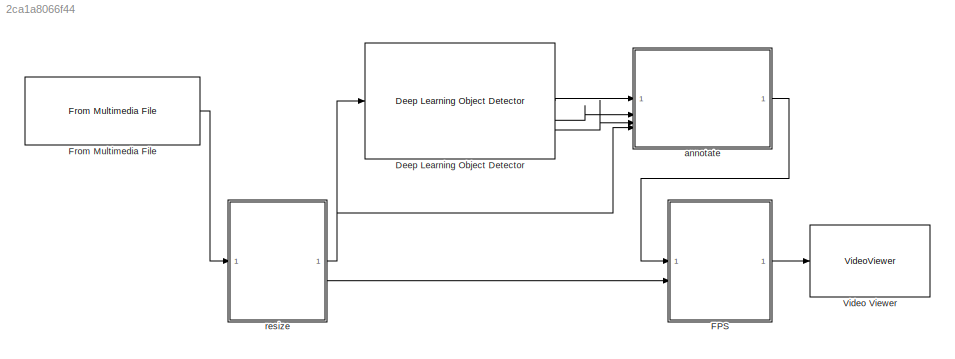
MODEL slx_2ca1a8066f44
KIND model
CONFIG AbsTol = auto
CONFIG EnableMultiTasking = off
CONFIG FixedStep = auto
CONFIG MaxStep = auto
CONFIG MinStep = auto
CONFIG RelTol = 1e-3
CONFIG SampleTimeConstraint = Unconstrained
CONFIG SolverName = VariableStepAuto
CONFIG StartTime = 0.0
CONFIG StopTime = 10.0
BLOCK [Reference] Deep Learning Object Detector  REF=visionanalysis/Deep Learning Object Detector
  SourceBlock = visionanalysis/Deep Learning Object Detector
  SourceType = Deep Learning Object Detector
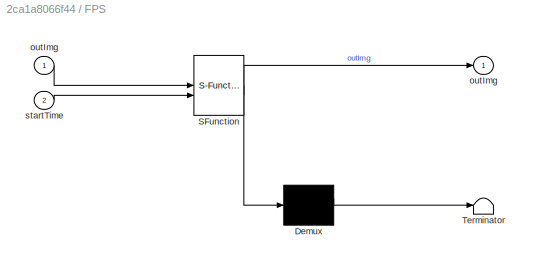
BLOCK [SubSystem] FPS
  ErrorFcn = Stateflow.Translate.translate
  LibrarySourceBlock = simulink/User-Defined\nFunctions/MATLAB Function
  PermitHierarchicalResolution = ExplicitOnly
  SFBlockType = MATLAB Function
  TreatAsAtomicUnit = on
BLOCK [Demux] FPS/ Demux 
  Outputs = 1
BLOCK [S-Function] FPS/ SFunction 
  EnableBusSupport = on
  FunctionName = sf_sfun
  PortCounts = [2 2]
  SFcnIsStateOwnerBlock = off
  SFunctionDeploymentMode = off
  Tag = Stateflow S-Function 3
BLOCK [Terminator] FPS/ Terminator 
BLOCK [Outport] FPS/outImg
BLOCK [Inport] FPS/outImg 
BLOCK [Inport] FPS/startTime
  Port = 2
BLOCK [Reference] From Multimedia File  REF=dspvision/From Multimedia File
  LibrarySourceBlock = audiosources/From Multimedia File
  SourceBlock = dspvision/From Multimedia File
  SourceType = From Multimedia File
BLOCK [VideoViewer] Video Viewer
  FigPos = [546.6 774 857.6 545.6]
  ScopeSpecificationString = vipscopes.VideoViewerScopeCfg('CurrentConfiguration', extmgr.ConfigurationSet(extmgr.Configuration('Core','General UI',true),extmgr.Configuration('Core','Source UI',true),extmgr.Configuration('Sources','WiredSimulink',true),extmgr.Configuration('Visuals','Video',true),extmgr.Configuration('Tools','Image Navigation Tools',true,'Magnification',2),extmgr.Configuration('Tools','Image Tool',true),extmg...<+98ch>
  colormapValue = gray(256)
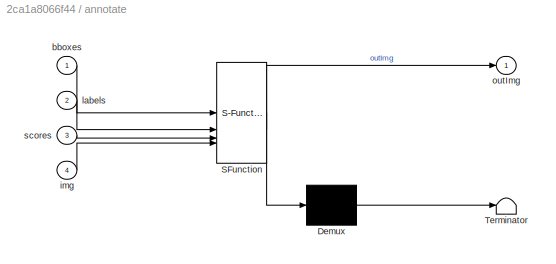
BLOCK [SubSystem] annotate
  ErrorFcn = Stateflow.Translate.translate
  LibrarySourceBlock = simulink/User-Defined\nFunctions/MATLAB Function
  PermitHierarchicalResolution = ExplicitOnly
  SFBlockType = MATLAB Function
  TreatAsAtomicUnit = on
BLOCK [Demux] annotate/ Demux 
  Outputs = 1
BLOCK [S-Function] annotate/ SFunction 
  EnableBusSupport = on
  FunctionName = sf_sfun
  PortCounts = [4 2]
  SFcnIsStateOwnerBlock = off
  SFunctionDeploymentMode = off
  Tag = Stateflow S-Function 4
BLOCK [Terminator] annotate/ Terminator 
BLOCK [Inport] annotate/bboxes
BLOCK [Inport] annotate/img
  Port = 4
BLOCK [Inport] annotate/labels
  Port = 2
BLOCK [Outport] annotate/outImg
BLOCK [Inport] annotate/scores
  Port = 3
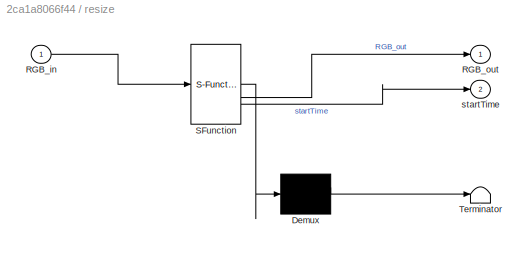
BLOCK [SubSystem] resize
  ErrorFcn = Stateflow.Translate.translate
  LibrarySourceBlock = simulink/User-Defined\nFunctions/MATLAB Function
  PermitHierarchicalResolution = ExplicitOnly
  SFBlockType = MATLAB Function
  TreatAsAtomicUnit = on
BLOCK [Demux] resize/ Demux 
  Outputs = 1
BLOCK [S-Function] resize/ SFunction 
  EnableBusSupport = on
  FunctionName = sf_sfun
  PortCounts = [1 3]
  SFcnIsStateOwnerBlock = off
  SFunctionDeploymentMode = off
  Tag = Stateflow S-Function 1
BLOCK [Terminator] resize/ Terminator 
BLOCK [Inport] resize/RGB_in
BLOCK [Outport] resize/RGB_out
BLOCK [Outport] resize/startTime
  Port = 2
LINE Deep Learning Object Detector:1 -> annotate:1
LINE Deep Learning Object Detector:2 -> annotate:2
LINE Deep Learning Object Detector:3 -> annotate:3
LINE FPS:1 -> Video Viewer:1
LINE From Multimedia File:1 -> resize:1
LINE annotate:1 -> FPS:1
NET resize:1 -> Deep Learning Object Detector:1, annotate:4
LINE resize:2 -> FPS:2
note: NET lines group one-source signal fan-out (src -> all destinations, sorted); 1:1 wires keep LINE
CHART resize states=1 transitions=1
  STATE_LABEL 'eML_blk_kernel()'
  STATE_LABEL 'SCRIPT:\nfunction [RGB_out, startTime] = resizeImg(RGB_in)\n\n    RGB_out = imresize(RGB_in,[320,320]);\n    currentTime = datetime;\n    startTime = [currentTime.Year currentTime.Month currentTime.Day currentTime.Hour ...\n    currentTime.Minute currentTime.Second];\n\nend'
CHART FPS states=1 transitions=1
  STATE_LABEL 'eML_blk_kernel()'
  STATE_LABEL "SCRIPT:\nfunction outImg = calcFPS(outImg, startTime)\nfinishTime = datetime;\ndiffTime = seconds(finishTime-datetime(startTime));\npersistent count;\nif isempty(count)\ncount = 0;\nend\npersistent fps;\nif isempty(fps)\nfps =0;\nend\nfps =(count*fps +1*(1/diffTime))/(count+1);\ncount = count + 1;\noutImg = insertText(outImg, [10 80],['FPS:' sprintf('%0.2f',fps) ], 'AnchorPoint','LeftBottom');\nend"
CHART annotate states=1 transitions=1
  STATE_LABEL 'eML_blk_kernel()'
  STATE_LABEL 'SCRIPT:\nfunction outImg = AnnotateImage(bboxes, labels,scores, img)\n% Annotate detections in the image. |\nif ~isempty(bboxes)\n    for i = 1:numel(labels)\n        labelText = sprintf(\'%s: %.1f%%\', char(labels(i)), scores(i) * 100);\n        img = insertObjectAnnotation(img, "rectangle", bboxes(i, :), labelText);\n    end\nend\n\noutImg = img;\n\nend'
CHART  states=0 transitions=0
CHART  states=0 transitions=0
CHART  states=0 transitions=0
